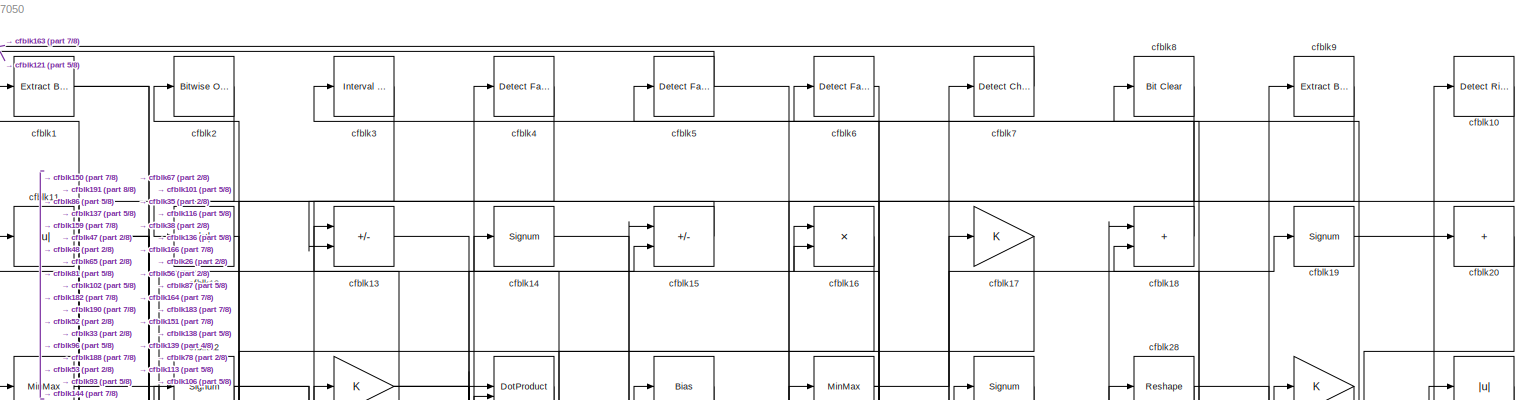
[diagram: root canvas - part 1/8, full width, top band]
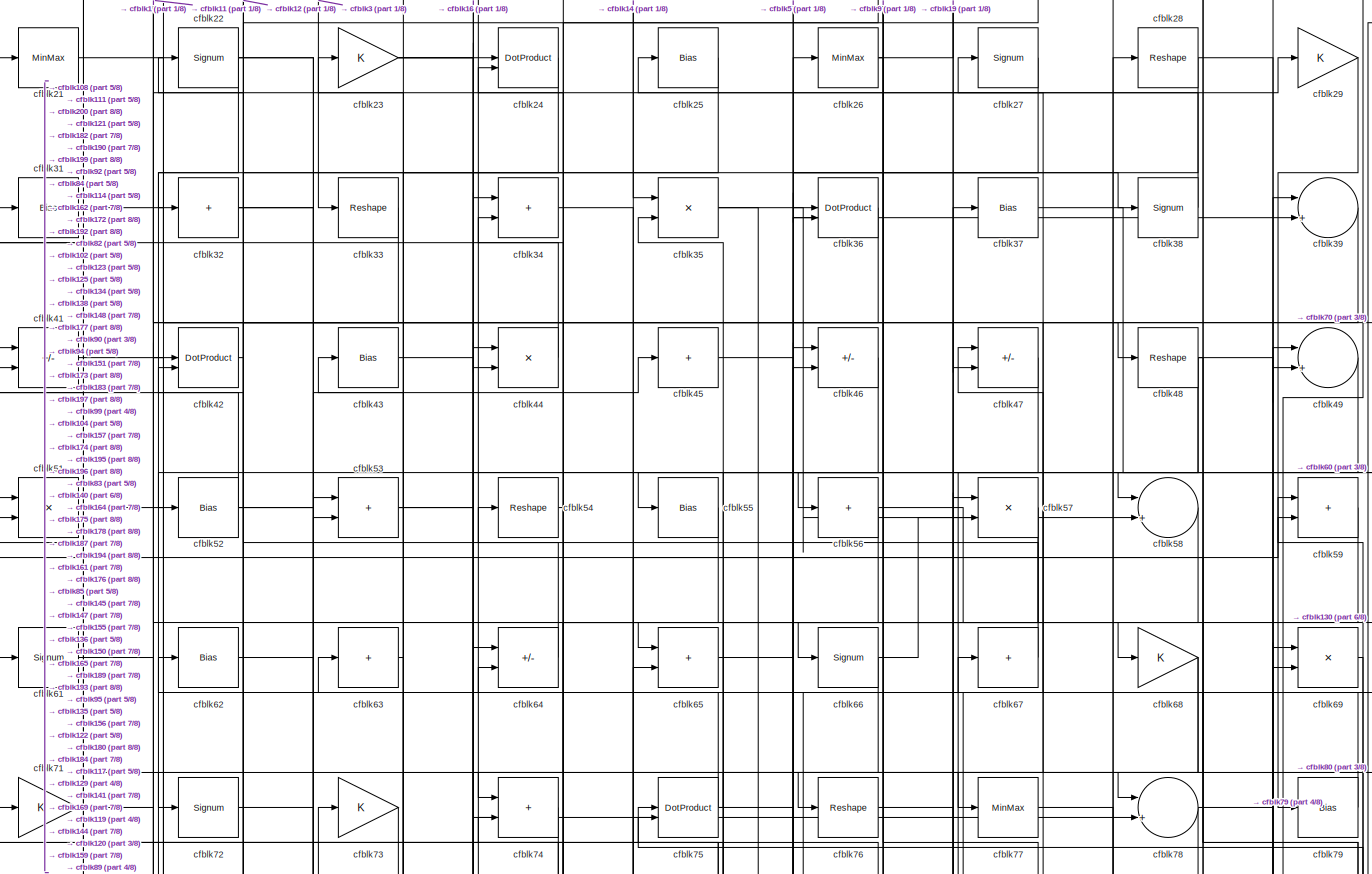
[diagram: root canvas - part 2/8, full width, top band]
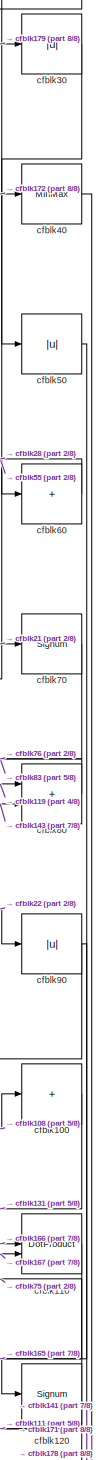
[diagram: root canvas - part 3/8, middle right region]
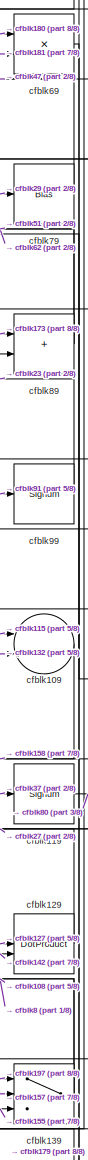
[diagram: root canvas - part 4/8, middle right region]
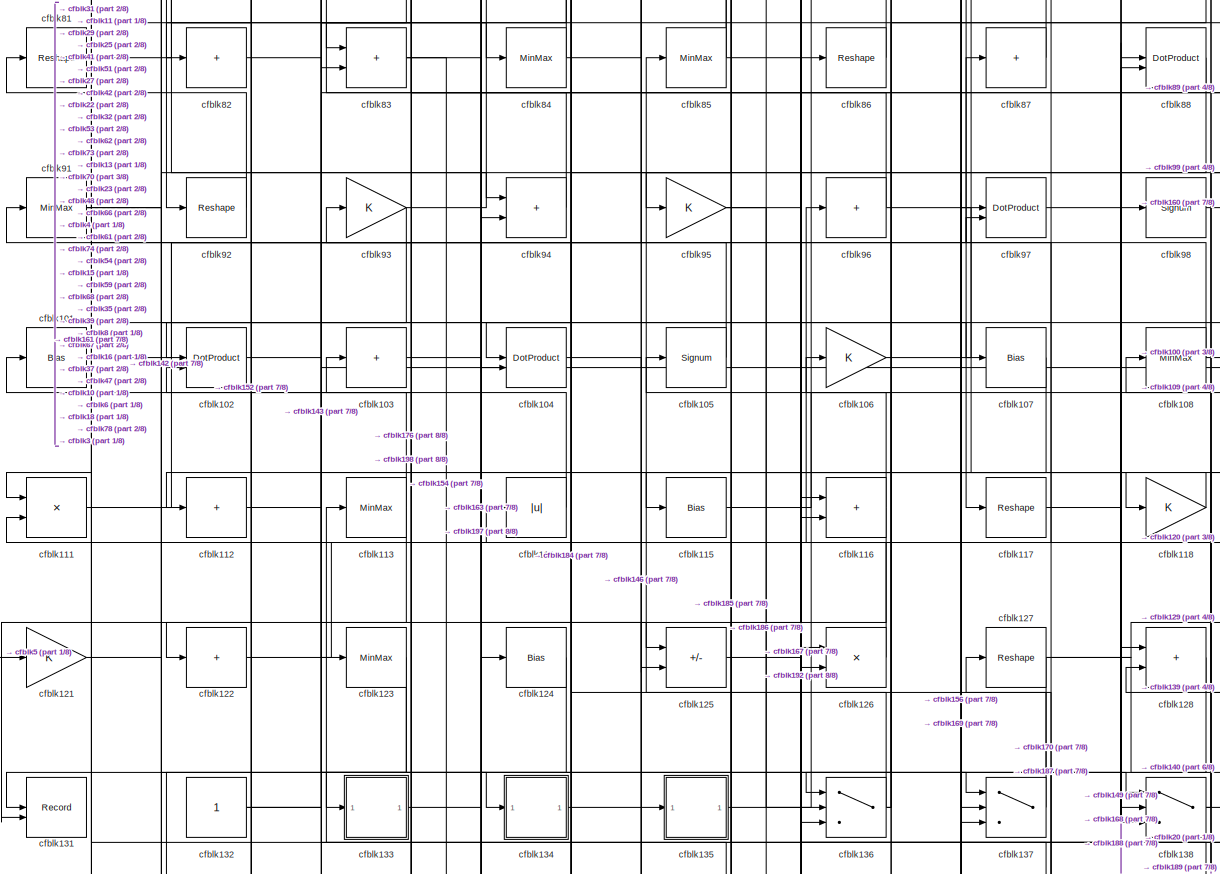
[diagram: root canvas - part 5/8, full width, middle band]
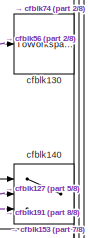
[diagram: root canvas - part 6/8, middle right region]
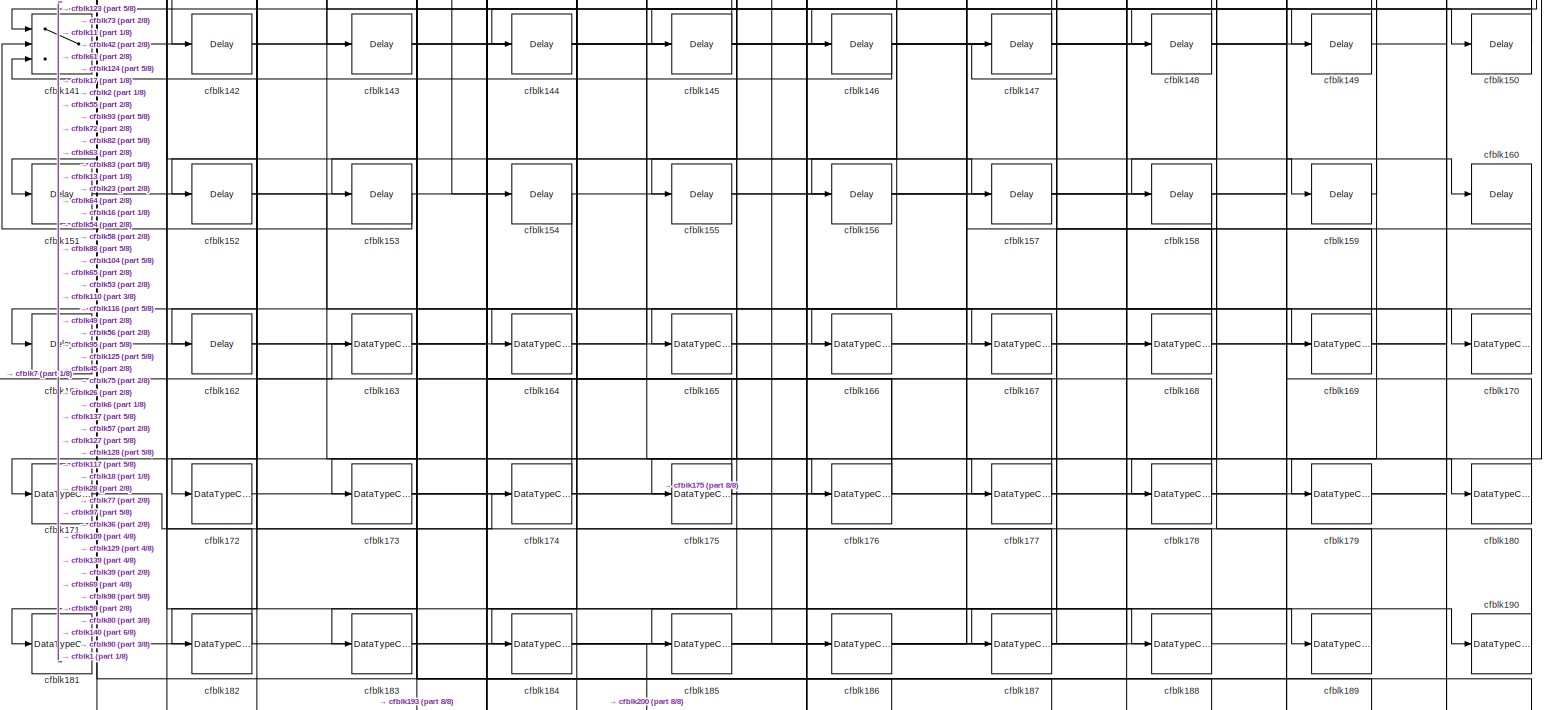
[diagram: root canvas - part 7/8, full width, bottom band]
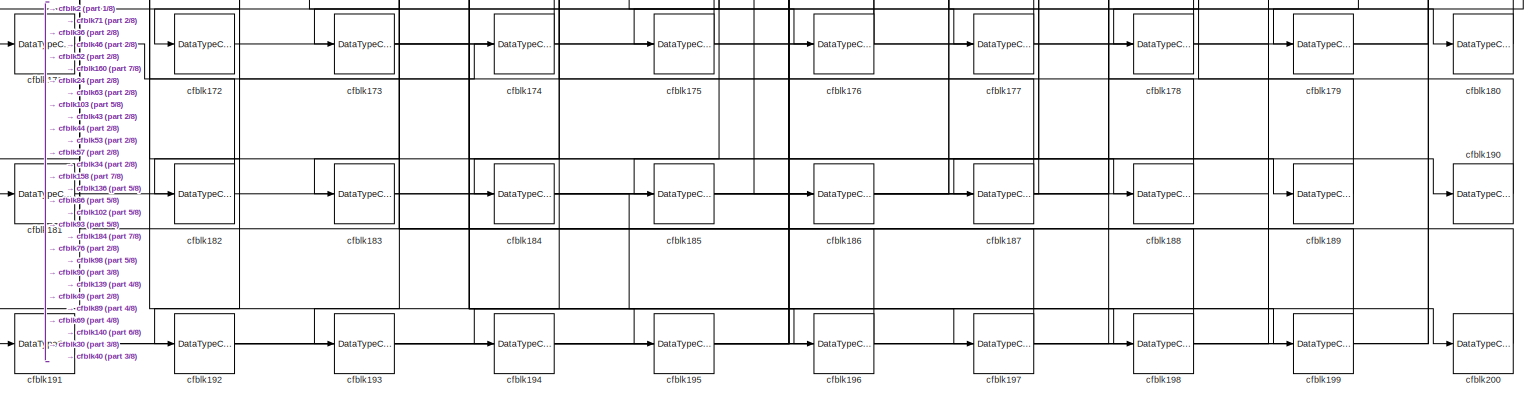
[diagram: root canvas - part 8/8, full width, bottom band]
MODEL slx_faa602897050
KIND model
CONFIG AbsTol = auto
CONFIG EnableMultiTasking = off
CONFIG FixedStep = auto
CONFIG MaxStep = auto
CONFIG MinStep = auto
CONFIG RelTol = 1e-3
CONFIG SampleTimeConstraint = Unconstrained
CONFIG SolverName = VariableStepAuto
CONFIG StartTime = 0.0
CONFIG StopTime = 10.0
BLOCK [Reference] cfblk1  REF=simulink/Logic and Bit
Operations/Extract Bits
  LibrarySourceBlock = hdlsllib/Logic and Bit\nOperations/Extract Bits
  SourceBlock = simulink/Logic and Bit\nOperations/Extract Bits
  SourceType = Extract Bits
BLOCK [Reference] cfblk10  REF=hdlsllib/Logic and Bit
Operations/Detect Rise
Nonnegative
  SourceBlock = hdlsllib/Logic and Bit\nOperations/Detect Rise\nNonnegative
  SourceType = Detect Rise Nonnegative
BLOCK [Sum] cfblk100
  IconShape = rectangular
  Inputs = +
BLOCK [Bias] cfblk101
  Bias = 0.0
  SaturateOnIntegerOverflow = off
BLOCK [DotProduct] cfblk102
  OutDataTypeStr = Inherit: Inherit via internal rule
BLOCK [Sum] cfblk103
  IconShape = rectangular
  Inputs = +
BLOCK [DotProduct] cfblk104
  OutDataTypeStr = Inherit: Inherit via internal rule
BLOCK [Signum] cfblk105
BLOCK [Gain] cfblk106
BLOCK [Bias] cfblk107
  Bias = 0.0
  SaturateOnIntegerOverflow = off
BLOCK [MinMax] cfblk108
BLOCK [Sum] cfblk109
  Inputs = |++
BLOCK [Abs] cfblk11
  SaturateOnIntegerOverflow = off
BLOCK [DotProduct] cfblk110
  OutDataTypeStr = Inherit: Inherit via internal rule
BLOCK [Product] cfblk111
  Inputs = */
  RndMeth = Zero
  SaturateOnIntegerOverflow = on
BLOCK [Sum] cfblk112
  IconShape = rectangular
  Inputs = +
BLOCK [MinMax] cfblk113
BLOCK [Abs] cfblk114
  SaturateOnIntegerOverflow = off
BLOCK [Bias] cfblk115
  Bias = 0.0
  SaturateOnIntegerOverflow = off
BLOCK [Sum] cfblk116
  IconShape = rectangular
BLOCK [Reshape] cfblk117
BLOCK [Gain] cfblk118
BLOCK [Signum] cfblk119
BLOCK [Abs] cfblk12
  SaturateOnIntegerOverflow = off
BLOCK [Signum] cfblk120
BLOCK [Gain] cfblk121
BLOCK [Sum] cfblk122
  IconShape = rectangular
  Inputs = +
BLOCK [MinMax] cfblk123
BLOCK [Bias] cfblk124
  Bias = 0.0
  SaturateOnIntegerOverflow = off
BLOCK [Sum] cfblk125
  IconShape = rectangular
  Inputs = +-
BLOCK [Product] cfblk126
  Inputs = */
  RndMeth = Zero
  SaturateOnIntegerOverflow = on
BLOCK [Reshape] cfblk127
BLOCK [Sum] cfblk128
  IconShape = rectangular
BLOCK [DotProduct] cfblk129
  OutDataTypeStr = Inherit: Inherit via internal rule
BLOCK [Sum] cfblk13
  IconShape = rectangular
  Inputs = +-
BLOCK [ToWorkspace] cfblk130
  MaxDataPoints = inf
  SampleTime = -1
  SaveFormat = Timeseries
  VariableName = simout
BLOCK [Record] cfblk131
  CompatibilityTag = XY
  FileSettingsInternal = {"entries":[{"content":{"excelSettings":{"content":{},"type":"Streamout.ExcelSettings"}},"type":"Streamout.FileSettingStorage","uuid":""}],"packageUris":["http:\/\/schema.mathworks.com\/mf0\/streamout_blocks\/R2020a"],"version":"1.0"}
  Layout = [1 1]
  SignalsInternal = {"entries":[{"content":{"signals":[{"content":{"blockPath":[],"dimensions":[1],"domain":"","lineColor":"#a2142f","plots":[1],"port":1,"signalID":1453,"signalName":"XY Graph:1"},"type":"RecordBlkView.Signal","uuid":""},{"content":{"blockPath":[],"dimensions":[1],"domain":"","lineColor":"#139fff","plots":[1],"port":2,"signalID":1456,"signalName":"XY Graph:2"},"type":"RecordBlkView.Signal","uuid":""}...<+146ch>
  VisualizationBindings = {"xyplotplugin":{"info":[{"series":[{"bindingParametersList":[{"parameter":"X-Axis","signalID":1453,"signalName":"XY Graph:1"},{"parameter":"Y-Axis","signalID":1456,"signalName":"XY Graph:2"}],"seriesID":12025}],"subplotID":1}]}}
  st = -1
BLOCK [Constant] cfblk132
  SampleTime = -1
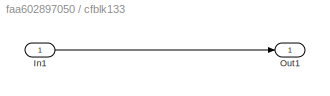
BLOCK [SubSystem] cfblk133
  LibrarySourceBlock = hdlsllib/Ports &\nSubsystems/Subsystem
BLOCK [Inport] cfblk133/In1
BLOCK [Outport] cfblk133/Out1
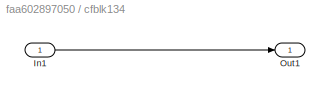
BLOCK [SubSystem] cfblk134
  LibrarySourceBlock = hdlsllib/Ports &\nSubsystems/Subsystem
BLOCK [Inport] cfblk134/In1
BLOCK [Outport] cfblk134/Out1
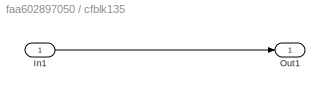
BLOCK [SubSystem] cfblk135
  LibrarySourceBlock = hdlsllib/Ports &\nSubsystems/Subsystem
BLOCK [Inport] cfblk135/In1
BLOCK [Outport] cfblk135/Out1
BLOCK [Switch] cfblk136
  InputSameDT = off
  SaturateOnIntegerOverflow = off
BLOCK [Switch] cfblk137
  InputSameDT = off
  SaturateOnIntegerOverflow = off
BLOCK [Switch] cfblk138
  InputSameDT = off
  SaturateOnIntegerOverflow = off
BLOCK [Switch] cfblk139
  InputSameDT = off
  SaturateOnIntegerOverflow = off
BLOCK [Signum] cfblk14
BLOCK [Switch] cfblk140
  InputSameDT = off
  SaturateOnIntegerOverflow = off
BLOCK [Switch] cfblk141
  InputSameDT = off
  SaturateOnIntegerOverflow = off
BLOCK [Delay] cfblk142
  InputPortMap = u0
  SampleTime = 1
BLOCK [Delay] cfblk143
  InputPortMap = u0
  SampleTime = 1
BLOCK [Delay] cfblk144
  InputPortMap = u0
  SampleTime = 1
BLOCK [Delay] cfblk145
  InputPortMap = u0
  SampleTime = 1
BLOCK [Delay] cfblk146
  InputPortMap = u0
  SampleTime = 1
BLOCK [Delay] cfblk147
  InputPortMap = u0
  SampleTime = 1
BLOCK [Delay] cfblk148
  InputPortMap = u0
  SampleTime = 1
BLOCK [Delay] cfblk149
  InputPortMap = u0
  SampleTime = 1
BLOCK [Sum] cfblk15
  IconShape = rectangular
  Inputs = +-
BLOCK [Delay] cfblk150
  InputPortMap = u0
  SampleTime = 1
BLOCK [Delay] cfblk151
  InputPortMap = u0
  SampleTime = 1
BLOCK [Delay] cfblk152
  InputPortMap = u0
  SampleTime = 1
BLOCK [Delay] cfblk153
  InputPortMap = u0
  SampleTime = 1
BLOCK [Delay] cfblk154
  InputPortMap = u0
  SampleTime = 1
BLOCK [Delay] cfblk155
  InputPortMap = u0
  SampleTime = 1
BLOCK [Delay] cfblk156
  InputPortMap = u0
  SampleTime = 1
BLOCK [Delay] cfblk157
  InputPortMap = u0
  SampleTime = 1
BLOCK [Delay] cfblk158
  InputPortMap = u0
  SampleTime = 1
BLOCK [Delay] cfblk159
  InputPortMap = u0
  SampleTime = 1
BLOCK [Product] cfblk16
  Inputs = */
  RndMeth = Zero
  SaturateOnIntegerOverflow = on
BLOCK [Delay] cfblk160
  InputPortMap = u0
  SampleTime = 1
BLOCK [Delay] cfblk161
  InputPortMap = u0
  SampleTime = 1
BLOCK [Delay] cfblk162
  InputPortMap = u0
  SampleTime = 1
BLOCK [DataTypeConversion] cfblk163
  OutDataTypeStr = uint8
  RndMeth = Floor
  SaturateOnIntegerOverflow = off
BLOCK [DataTypeConversion] cfblk164
  OutDataTypeStr = uint8
  RndMeth = Floor
  SaturateOnIntegerOverflow = off
BLOCK [DataTypeConversion] cfblk165
  OutDataTypeStr = uint8
  RndMeth = Floor
  SaturateOnIntegerOverflow = off
BLOCK [DataTypeConversion] cfblk166
  OutDataTypeStr = uint8
  RndMeth = Floor
  SaturateOnIntegerOverflow = off
BLOCK [DataTypeConversion] cfblk167
  OutDataTypeStr = uint8
  RndMeth = Floor
  SaturateOnIntegerOverflow = off
BLOCK [DataTypeConversion] cfblk168
  OutDataTypeStr = uint8
  RndMeth = Floor
  SaturateOnIntegerOverflow = off
BLOCK [DataTypeConversion] cfblk169
  OutDataTypeStr = uint8
  RndMeth = Floor
  SaturateOnIntegerOverflow = off
BLOCK [Gain] cfblk17
BLOCK [DataTypeConversion] cfblk170
  OutDataTypeStr = uint8
  RndMeth = Floor
  SaturateOnIntegerOverflow = off
BLOCK [DataTypeConversion] cfblk171
  OutDataTypeStr = uint8
  RndMeth = Floor
  SaturateOnIntegerOverflow = off
BLOCK [DataTypeConversion] cfblk172
  OutDataTypeStr = uint8
  RndMeth = Floor
  SaturateOnIntegerOverflow = off
BLOCK [DataTypeConversion] cfblk173
  RndMeth = Floor
  SaturateOnIntegerOverflow = off
BLOCK [DataTypeConversion] cfblk174
  OutDataTypeStr = uint8
  RndMeth = Floor
  SaturateOnIntegerOverflow = off
BLOCK [DataTypeConversion] cfblk175
  OutDataTypeStr = uint8
  RndMeth = Floor
  SaturateOnIntegerOverflow = off
BLOCK [DataTypeConversion] cfblk176
  RndMeth = Floor
  SaturateOnIntegerOverflow = off
BLOCK [DataTypeConversion] cfblk177
  OutDataTypeStr = uint8
  RndMeth = Floor
  SaturateOnIntegerOverflow = off
BLOCK [DataTypeConversion] cfblk178
  OutDataTypeStr = uint8
  RndMeth = Floor
  SaturateOnIntegerOverflow = off
BLOCK [DataTypeConversion] cfblk179
  OutDataTypeStr = uint8
  RndMeth = Floor
  SaturateOnIntegerOverflow = off
BLOCK [Sum] cfblk18
  IconShape = rectangular
BLOCK [DataTypeConversion] cfblk180
  OutDataTypeStr = uint8
  RndMeth = Floor
  SaturateOnIntegerOverflow = off
BLOCK [DataTypeConversion] cfblk181
  OutDataTypeStr = uint8
  RndMeth = Floor
  SaturateOnIntegerOverflow = off
BLOCK [DataTypeConversion] cfblk182
  OutDataTypeStr = uint8
  RndMeth = Floor
  SaturateOnIntegerOverflow = off
BLOCK [DataTypeConversion] cfblk183
  OutDataTypeStr = uint8
  RndMeth = Floor
  SaturateOnIntegerOverflow = off
BLOCK [DataTypeConversion] cfblk184
  RndMeth = Floor
  SaturateOnIntegerOverflow = off
BLOCK [DataTypeConversion] cfblk185
  OutDataTypeStr = uint8
  RndMeth = Floor
  SaturateOnIntegerOverflow = off
BLOCK [DataTypeConversion] cfblk186
  OutDataTypeStr = uint8
  RndMeth = Floor
  SaturateOnIntegerOverflow = off
BLOCK [DataTypeConversion] cfblk187
  RndMeth = Floor
  SaturateOnIntegerOverflow = off
BLOCK [DataTypeConversion] cfblk188
  OutDataTypeStr = uint8
  RndMeth = Floor
  SaturateOnIntegerOverflow = off
BLOCK [DataTypeConversion] cfblk189
  OutDataTypeStr = uint8
  RndMeth = Floor
  SaturateOnIntegerOverflow = off
BLOCK [Signum] cfblk19
BLOCK [DataTypeConversion] cfblk190
  OutDataTypeStr = boolean
  RndMeth = Floor
  SaturateOnIntegerOverflow = off
BLOCK [DataTypeConversion] cfblk191
  RndMeth = Floor
  SaturateOnIntegerOverflow = off
BLOCK [DataTypeConversion] cfblk192
  RndMeth = Floor
  SaturateOnIntegerOverflow = off
BLOCK [DataTypeConversion] cfblk193
  OutDataTypeStr = uint8
  RndMeth = Floor
  SaturateOnIntegerOverflow = off
BLOCK [DataTypeConversion] cfblk194
  OutDataTypeStr = uint8
  RndMeth = Floor
  SaturateOnIntegerOverflow = off
BLOCK [DataTypeConversion] cfblk195
  OutDataTypeStr = uint8
  RndMeth = Floor
  SaturateOnIntegerOverflow = off
BLOCK [DataTypeConversion] cfblk196
  OutDataTypeStr = uint8
  RndMeth = Floor
  SaturateOnIntegerOverflow = off
BLOCK [DataTypeConversion] cfblk197
  RndMeth = Floor
  SaturateOnIntegerOverflow = off
BLOCK [DataTypeConversion] cfblk198
  OutDataTypeStr = uint8
  RndMeth = Floor
  SaturateOnIntegerOverflow = off
BLOCK [DataTypeConversion] cfblk199
  OutDataTypeStr = uint8
  RndMeth = Floor
  SaturateOnIntegerOverflow = off
BLOCK [Reference] cfblk2  REF=simulink/Logic and Bit
Operations/Bitwise
Operator
  LibrarySourceBlock = hdlsllib/Logic and Bit\nOperations/Bitwise\nOperator
  SourceBlock = simulink/Logic and Bit\nOperations/Bitwise\nOperator
  SourceType = Bitwise Operator
BLOCK [Sum] cfblk20
  IconShape = rectangular
  Inputs = +
BLOCK [DataTypeConversion] cfblk200
  OutDataTypeStr = uint8
  RndMeth = Floor
  SaturateOnIntegerOverflow = off
BLOCK [MinMax] cfblk21
BLOCK [Signum] cfblk22
BLOCK [Gain] cfblk23
BLOCK [DotProduct] cfblk24
  OutDataTypeStr = Inherit: Inherit via internal rule
BLOCK [Bias] cfblk25
  Bias = 0.0
  SaturateOnIntegerOverflow = off
BLOCK [MinMax] cfblk26
BLOCK [Signum] cfblk27
BLOCK [Reshape] cfblk28
BLOCK [Gain] cfblk29
BLOCK [Reference] cfblk3  REF=hdlsllib/Logic and Bit
Operations/Interval Test
  SourceBlock = hdlsllib/Logic and Bit\nOperations/Interval Test
  SourceType = Interval Test
BLOCK [Abs] cfblk30
  SaturateOnIntegerOverflow = off
BLOCK [Bias] cfblk31
  Bias = 0.0
  SaturateOnIntegerOverflow = off
BLOCK [Sum] cfblk32
  IconShape = rectangular
  Inputs = +
BLOCK [Reshape] cfblk33
BLOCK [Sum] cfblk34
  IconShape = rectangular
BLOCK [Product] cfblk35
  Inputs = */
  RndMeth = Zero
  SaturateOnIntegerOverflow = on
BLOCK [DotProduct] cfblk36
  OutDataTypeStr = Inherit: Inherit via internal rule
BLOCK [Bias] cfblk37
  Bias = 0.0
  SaturateOnIntegerOverflow = off
BLOCK [Signum] cfblk38
BLOCK [Sum] cfblk39
  Inputs = |++
BLOCK [Reference] cfblk4  REF=hdlsllib/Logic and Bit
Operations/Detect Fall
Nonpositive
  SourceBlock = hdlsllib/Logic and Bit\nOperations/Detect Fall\nNonpositive
  SourceType = Detect Fall Nonpositive
BLOCK [MinMax] cfblk40
BLOCK [Sum] cfblk41
  IconShape = rectangular
  Inputs = +-
BLOCK [DotProduct] cfblk42
  OutDataTypeStr = Inherit: Inherit via internal rule
BLOCK [Bias] cfblk43
  Bias = 0.0
  SaturateOnIntegerOverflow = off
BLOCK [Product] cfblk44
  Inputs = */
  RndMeth = Zero
  SaturateOnIntegerOverflow = on
BLOCK [Sum] cfblk45
  IconShape = rectangular
  Inputs = +
BLOCK [Sum] cfblk46
  IconShape = rectangular
  Inputs = +-
BLOCK [Sum] cfblk47
  IconShape = rectangular
  Inputs = +-
BLOCK [Reshape] cfblk48
BLOCK [Sum] cfblk49
  Inputs = |++
BLOCK [Reference] cfblk5  REF=hdlsllib/Logic and Bit
Operations/Detect Fall
Nonpositive
  SourceBlock = hdlsllib/Logic and Bit\nOperations/Detect Fall\nNonpositive
  SourceType = Detect Fall Nonpositive
BLOCK [Abs] cfblk50
  SaturateOnIntegerOverflow = off
BLOCK [Product] cfblk51
  Inputs = */
  RndMeth = Zero
  SaturateOnIntegerOverflow = on
BLOCK [Bias] cfblk52
  Bias = 0.0
  SaturateOnIntegerOverflow = off
BLOCK [Sum] cfblk53
  IconShape = rectangular
BLOCK [Reshape] cfblk54
BLOCK [Bias] cfblk55
  Bias = 0.0
  SaturateOnIntegerOverflow = off
BLOCK [Sum] cfblk56
  IconShape = rectangular
  Inputs = +
BLOCK [Product] cfblk57
  Inputs = */
  RndMeth = Zero
  SaturateOnIntegerOverflow = on
BLOCK [Sum] cfblk58
  Inputs = |++
BLOCK [Sum] cfblk59
  IconShape = rectangular
BLOCK [Reference] cfblk6  REF=hdlsllib/Logic and Bit
Operations/Detect Fall
Negative
  SourceBlock = hdlsllib/Logic and Bit\nOperations/Detect Fall\nNegative
  SourceType = Detect Fall Negative
BLOCK [Sum] cfblk60
  IconShape = rectangular
  Inputs = +
BLOCK [Signum] cfblk61
BLOCK [Bias] cfblk62
  Bias = 0.0
  SaturateOnIntegerOverflow = off
BLOCK [Sum] cfblk63
  IconShape = rectangular
  Inputs = +
BLOCK [Sum] cfblk64
  IconShape = rectangular
  Inputs = +-
BLOCK [Sum] cfblk65
  IconShape = rectangular
BLOCK [Signum] cfblk66
BLOCK [Sum] cfblk67
  IconShape = rectangular
  Inputs = +
BLOCK [Gain] cfblk68
BLOCK [Product] cfblk69
  Inputs = */
  RndMeth = Zero
  SaturateOnIntegerOverflow = on
BLOCK [Reference] cfblk7  REF=simulink/Logic and Bit
Operations/Detect
Change
  LibrarySourceBlock = hdlsllib/Logic and Bit\nOperations/Detect\nChange
  SourceBlock = simulink/Logic and Bit\nOperations/Detect\nChange
  SourceType = Detect Change
BLOCK [Signum] cfblk70
BLOCK [Gain] cfblk71
BLOCK [Signum] cfblk72
BLOCK [Gain] cfblk73
BLOCK [Sum] cfblk74
  IconShape = rectangular
BLOCK [DotProduct] cfblk75
  OutDataTypeStr = Inherit: Inherit via internal rule
BLOCK [Reshape] cfblk76
BLOCK [MinMax] cfblk77
BLOCK [Sum] cfblk78
  Inputs = |++
BLOCK [Bias] cfblk79
  Bias = 0.0
  SaturateOnIntegerOverflow = off
BLOCK [Reference] cfblk8  REF=simulink/Logic and Bit
Operations/Bit Clear
  LibrarySourceBlock = hdlsllib/Logic and Bit\nOperations/Bit Clear
  SourceBlock = simulink/Logic and Bit\nOperations/Bit Clear
  SourceType = Bit Clear
BLOCK [Sum] cfblk80
  IconShape = rectangular
BLOCK [Reshape] cfblk81
BLOCK [Sum] cfblk82
  IconShape = rectangular
  Inputs = +
BLOCK [Sum] cfblk83
  IconShape = rectangular
BLOCK [MinMax] cfblk84
BLOCK [MinMax] cfblk85
BLOCK [Reshape] cfblk86
BLOCK [Sum] cfblk87
  IconShape = rectangular
  Inputs = +
BLOCK [DotProduct] cfblk88
  OutDataTypeStr = Inherit: Inherit via internal rule
BLOCK [Sum] cfblk89
  IconShape = rectangular
BLOCK [Reference] cfblk9  REF=simulink/Logic and Bit
Operations/Extract Bits
  LibrarySourceBlock = hdlsllib/Logic and Bit\nOperations/Extract Bits
  SourceBlock = simulink/Logic and Bit\nOperations/Extract Bits
  SourceType = Extract Bits
BLOCK [Abs] cfblk90
  SaturateOnIntegerOverflow = off
BLOCK [MinMax] cfblk91
BLOCK [Reshape] cfblk92
BLOCK [Gain] cfblk93
BLOCK [Sum] cfblk94
  IconShape = rectangular
BLOCK [Gain] cfblk95
BLOCK [Sum] cfblk96
  IconShape = rectangular
  Inputs = +
BLOCK [DotProduct] cfblk97
  OutDataTypeStr = Inherit: Inherit via internal rule
BLOCK [Signum] cfblk98
BLOCK [Signum] cfblk99
LINE cfblk100:1 -> cfblk131:1
LINE cfblk101:1 -> cfblk15:1
LINE cfblk102:1 -> cfblk53:2
LINE cfblk103:1 -> cfblk197:1
LINE cfblk104:1 -> cfblk146:1
LINE cfblk105:1 -> cfblk91:1
LINE cfblk106:1 -> cfblk10:1
LINE cfblk107:1 -> cfblk112:1
NET cfblk108:1 -> cfblk100:1, cfblk31:1
LINE cfblk109:1 -> cfblk158:1
LINE cfblk10:1 -> cfblk102:1
LINE cfblk110:1 -> cfblk165:1
LINE cfblk111:1 -> cfblk87:1
LINE cfblk112:1 -> cfblk118:1
NET cfblk113:1 -> cfblk101:1, cfblk131:2
LINE cfblk114:1 -> cfblk42:2
LINE cfblk115:1 -> cfblk109:1
NET cfblk116:1 -> cfblk185:1, cfblk85:1
LINE cfblk117:1 -> cfblk149:1
LINE cfblk118:1 -> cfblk115:1
LINE cfblk119:1 -> cfblk80:1
NET cfblk11:1 -> cfblk137:1, cfblk159:1, cfblk48:1
NET cfblk120:1 -> cfblk111:2, cfblk75:1
LINE cfblk121:1 -> cfblk29:1
LINE cfblk122:1 -> cfblk37:1
NET cfblk123:1 -> cfblk133:1, cfblk161:1
LINE cfblk124:1 -> cfblk142:1
LINE cfblk125:1 -> cfblk167:1
LINE cfblk126:1 -> cfblk96:1
NET cfblk127:1 -> cfblk129:1, cfblk137:2, cfblk140:2
LINE cfblk128:1 -> cfblk187:1
LINE cfblk129:1 -> cfblk27:1
LINE cfblk12:1 -> cfblk52:1
NET cfblk132:1 -> cfblk109:2, cfblk89:2
LINE cfblk133/In1:1 -> cfblk133/Out1:1
LINE cfblk133:1 -> cfblk138:1
LINE cfblk134/In1:1 -> cfblk134/Out1:1
LINE cfblk134:1 -> cfblk135:1
LINE cfblk135/In1:1 -> cfblk135/Out1:1
LINE cfblk135:1 -> cfblk67:1
NET cfblk136:1 -> cfblk106:1, cfblk114:1, cfblk16:2
LINE cfblk137:1 -> cfblk105:1
NET cfblk138:1 -> cfblk18:2, cfblk3:1
NET cfblk139:1 -> cfblk108:1, cfblk8:1
LINE cfblk13:1 -> cfblk188:1
NET cfblk140:1 -> cfblk153:1, cfblk74:2
LINE cfblk141:1 -> cfblk28:1
LINE cfblk142:1 -> cfblk129:2
LINE cfblk143:1 -> cfblk80:2
LINE cfblk144:1 -> cfblk39:1
LINE cfblk145:1 -> cfblk53:1
LINE cfblk146:1 -> cfblk141:3
LINE cfblk147:1 -> cfblk75:2
LINE cfblk148:1 -> cfblk36:1
LINE cfblk149:1 -> cfblk116:1
LINE cfblk14:1 -> cfblk35:1
LINE cfblk150:1 -> cfblk1:1
LINE cfblk151:1 -> cfblk18:1
LINE cfblk152:1 -> cfblk170:1
LINE cfblk153:1 -> cfblk141:2
LINE cfblk154:1 -> cfblk181:1
LINE cfblk155:1 -> cfblk139:3
LINE cfblk156:1 -> cfblk137:3
LINE cfblk157:1 -> cfblk139:2
LINE cfblk158:1 -> cfblk175:1
LINE cfblk159:1 -> cfblk59:2
LINE cfblk15:1 -> cfblk12:1
LINE cfblk160:1 -> cfblk193:1
LINE cfblk161:1 -> cfblk65:2
LINE cfblk162:1 -> cfblk64:1
LINE cfblk163:1 -> cfblk124:1
LINE cfblk164:1 -> cfblk7:1
LINE cfblk165:1 -> cfblk26:1
LINE cfblk166:1 -> cfblk110:1
LINE cfblk167:1 -> cfblk110:2
LINE cfblk168:1 -> cfblk127:1
LINE cfblk169:1 -> cfblk97:1
LINE cfblk16:1 -> cfblk144:1
LINE cfblk170:1 -> cfblk97:2
LINE cfblk171:1 -> cfblk174:1
LINE cfblk172:1 -> cfblk40:1
NET cfblk173:1 -> cfblk198:1, cfblk89:1
LINE cfblk174:1 -> cfblk24:1
LINE cfblk175:1 -> cfblk24:2
NET cfblk176:1 -> cfblk102:2, cfblk93:1
LINE cfblk177:1 -> cfblk34:1
LINE cfblk178:1 -> cfblk34:2
LINE cfblk179:1 -> cfblk30:1
LINE cfblk17:1 -> cfblk182:1
LINE cfblk180:1 -> cfblk69:1
LINE cfblk181:1 -> cfblk69:2
LINE cfblk182:1 -> cfblk42:1
LINE cfblk183:1 -> cfblk17:1
NET cfblk184:1 -> cfblk200:1, cfblk57:1
LINE cfblk185:1 -> cfblk88:1
LINE cfblk186:1 -> cfblk88:2
NET cfblk187:1 -> cfblk147:1, cfblk54:1
LINE cfblk188:1 -> cfblk128:1
LINE cfblk189:1 -> cfblk128:2
LINE cfblk18:1 -> cfblk5:1
LINE cfblk190:1 -> cfblk2:1
NET cfblk191:1 -> cfblk140:1, cfblk140:3
NET cfblk192:1 -> cfblk136:3, cfblk86:1, cfblk98:1
LINE cfblk193:1 -> cfblk46:1
LINE cfblk194:1 -> cfblk46:2
LINE cfblk195:1 -> cfblk49:1
LINE cfblk196:1 -> cfblk43:1
NET cfblk197:1 -> cfblk139:1, cfblk63:1
LINE cfblk198:1 -> cfblk103:1
LINE cfblk199:1 -> cfblk44:1
LINE cfblk19:1 -> cfblk20:1
NET cfblk1:1 -> cfblk47:2, cfblk65:1
LINE cfblk200:1 -> cfblk71:1
LINE cfblk20:1 -> cfblk113:1
LINE cfblk21:1 -> cfblk70:1
NET cfblk22:1 -> cfblk134:1, cfblk32:1, cfblk90:1
NET cfblk23:1 -> cfblk125:2, cfblk157:1, cfblk78:2
LINE cfblk24:1 -> cfblk173:1
LINE cfblk25:1 -> cfblk92:1
NET cfblk26:1 -> cfblk156:1, cfblk19:1
LINE cfblk27:1 -> cfblk122:1
NET cfblk28:1 -> cfblk36:2, cfblk60:1
LINE cfblk29:1 -> cfblk79:1
LINE cfblk2:1 -> cfblk191:1
LINE cfblk30:1 -> cfblk50:1
LINE cfblk31:1 -> cfblk123:1
NET cfblk32:1 -> cfblk138:3, cfblk44:2
LINE cfblk33:1 -> cfblk72:1
LINE cfblk34:1 -> cfblk176:1
NET cfblk35:1 -> cfblk136:2, cfblk58:2
LINE cfblk36:1 -> cfblk172:1
LINE cfblk37:1 -> cfblk119:1
LINE cfblk38:1 -> cfblk25:1
LINE cfblk39:1 -> cfblk77:1
LINE cfblk3:1 -> cfblk33:1
LINE cfblk40:1 -> cfblk171:1
LINE cfblk41:1 -> cfblk94:1
LINE cfblk42:1 -> cfblk82:1
LINE cfblk43:1 -> cfblk195:1
LINE cfblk44:1 -> cfblk21:1
LINE cfblk45:1 -> cfblk150:1
LINE cfblk46:1 -> cfblk192:1
LINE cfblk47:1 -> cfblk117:1
NET cfblk48:1 -> cfblk104:2, cfblk49:2, cfblk58:1, cfblk78:1
LINE cfblk49:1 -> cfblk145:1
LINE cfblk4:1 -> cfblk13:2
LINE cfblk50:1 -> cfblk120:1
LINE cfblk51:1 -> cfblk84:1
NET cfblk52:1 -> cfblk177:1, cfblk41:1, cfblk45:1
NET cfblk53:1 -> cfblk16:1, cfblk196:1
LINE cfblk54:1 -> cfblk104:1
LINE cfblk55:1 -> cfblk162:1
NET cfblk56:1 -> cfblk130:1, cfblk155:1
NET cfblk57:1 -> cfblk194:1, cfblk74:1
LINE cfblk58:1 -> cfblk164:1
LINE cfblk59:1 -> cfblk66:1
NET cfblk5:1 -> cfblk121:1, cfblk38:1
LINE cfblk60:1 -> cfblk55:1
LINE cfblk61:1 -> cfblk190:1
LINE cfblk62:1 -> cfblk125:1
LINE cfblk63:1 -> cfblk183:1
LINE cfblk64:1 -> cfblk22:1
LINE cfblk65:1 -> cfblk68:1
NET cfblk66:1 -> cfblk57:2, cfblk94:2
LINE cfblk67:1 -> cfblk14:1
NET cfblk68:1 -> cfblk111:1, cfblk95:1
LINE cfblk69:1 -> cfblk179:1
LINE cfblk6:1 -> cfblk166:1
LINE cfblk70:1 -> cfblk83:1
LINE cfblk71:1 -> cfblk199:1
LINE cfblk72:1 -> cfblk148:1
LINE cfblk73:1 -> cfblk151:1
LINE cfblk74:1 -> cfblk83:2
NET cfblk75:1 -> cfblk189:1, cfblk35:2, cfblk64:2
LINE cfblk76:1 -> cfblk180:1
LINE cfblk77:1 -> cfblk169:1
NET cfblk78:1 -> cfblk136:1, cfblk9:1
LINE cfblk79:1 -> cfblk47:1
LINE cfblk7:1 -> cfblk163:1
LINE cfblk80:1 -> cfblk76:1
LINE cfblk81:1 -> cfblk15:2
LINE cfblk82:1 -> cfblk143:1
NET cfblk83:1 -> cfblk126:2, cfblk154:1
NET cfblk84:1 -> cfblk59:1, cfblk61:1
NET cfblk85:1 -> cfblk126:1, cfblk41:2, cfblk51:2
LINE cfblk86:1 -> cfblk11:1
LINE cfblk87:1 -> cfblk6:1
LINE cfblk88:1 -> cfblk184:1
NET cfblk89:1 -> cfblk51:1, cfblk62:1
LINE cfblk8:1 -> cfblk116:2
NET cfblk90:1 -> cfblk141:1, cfblk178:1
NET cfblk91:1 -> cfblk107:1, cfblk99:1
LINE cfblk92:1 -> cfblk81:1
NET cfblk93:1 -> cfblk152:1, cfblk4:1
LINE cfblk94:1 -> cfblk73:1
NET cfblk95:1 -> cfblk186:1, cfblk39:2
NET cfblk96:1 -> cfblk138:2, cfblk13:1
LINE cfblk97:1 -> cfblk168:1
LINE cfblk98:1 -> cfblk160:1
LINE cfblk99:1 -> cfblk23:1
LINE cfblk9:1 -> cfblk56:1
note: NET lines group one-source signal fan-out (src -> all destinations, sorted); 1:1 wires keep LINE
